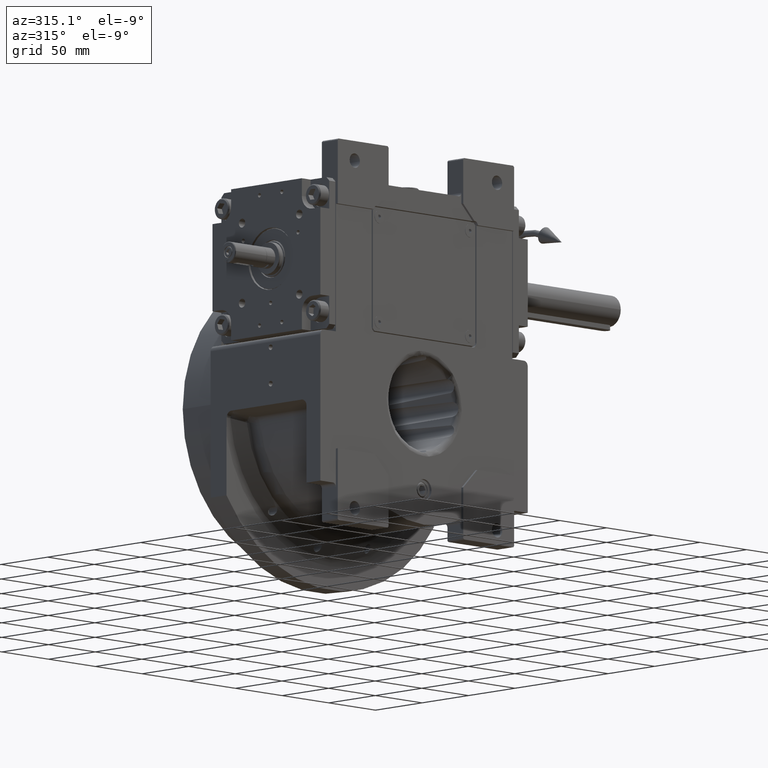
[diagram: clean part render]
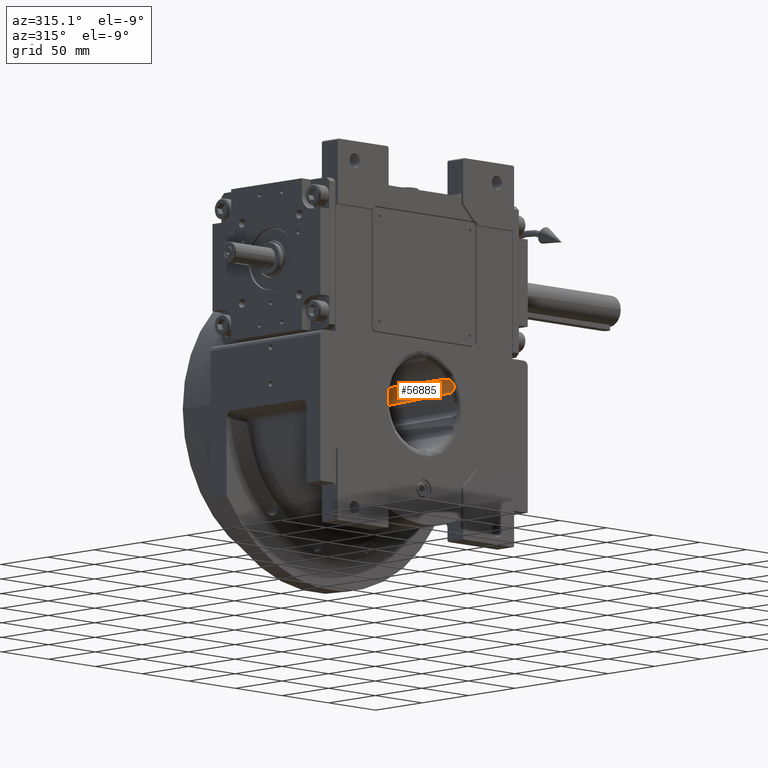
[diagram: same view with one face highlighted and labeled with its STEP entity id]
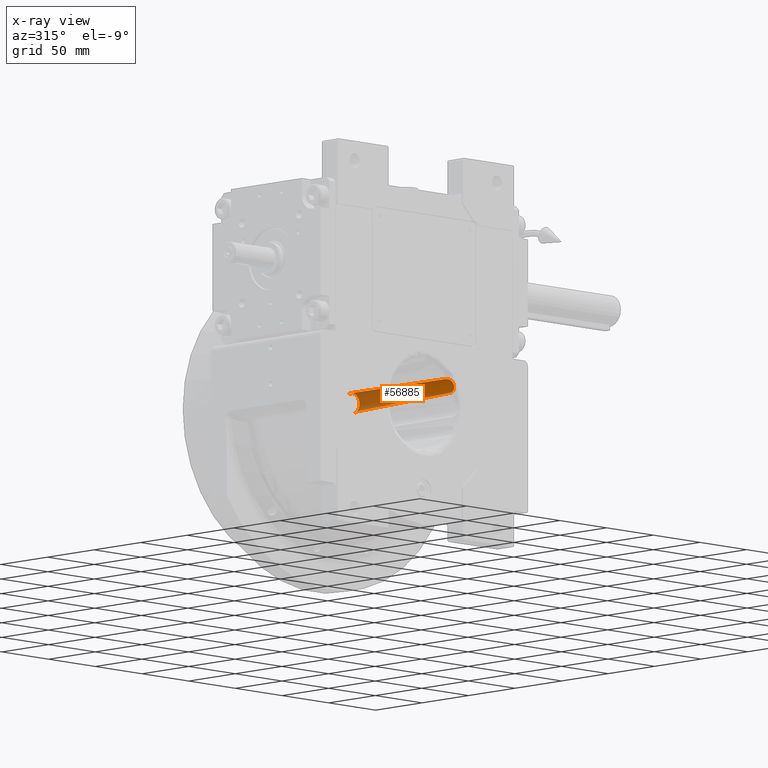
[diagram: x-ray of the same camera — body ghosted, the highlighted face saturated]
A machine part, auxiliary view. The second image highlights one B-rep face of the part: STEP entity #56885.
The next image is the same camera in x-ray: the body ghosted, the highlighted face saturated — about 36% of this face is hidden behind the body in this view.
In plain terms, the highlighted cylindrical surface (edge-blend (fillet) strip) has radius 7.5 mm, axis along (0, -1, 0).
Its self-contained STEP definition (entity closure, byte-faithful):
#136 = CARTESIAN_POINT ( 'NONE',  ( 20.96959790725053097, 49.40190329903994382, 20.57965935233431409 ) ) ;
#361 = CARTESIAN_POINT ( 'NONE',  ( 32.03796361895732758, -8.134360098611464807, 10.57554585156198712 ) ) ;
#522 = CARTESIAN_POINT ( 'NONE',  ( 30.96581530415839012, -52.41119386538401415, 20.60487158151145692 ) ) ;
#705 = CARTESIAN_POINT ( 'NONE',  ( 32.29623410238654202, -17.52649173517004400, 10.95311933300942009 ) ) ;
#739 = CARTESIAN_POINT ( 'NONE',  ( 30.16291113231696386, 47.58149373893668610, 8.774254786784718263 ) ) ;
#855 = CARTESIAN_POINT ( 'NONE',  ( 29.22287938311395905, -51.66287537547461284, 21.76369081053028509 ) ) ;
#907 = CARTESIAN_POINT ( 'NONE',  ( 25.76586295527069126, -20.15906628397324951, 22.49703246914016219 ) ) ;
#1083 = CARTESIAN_POINT ( 'NONE',  ( 30.33517453208069981, 46.61641710001740080, 8.893520450439648783 ) ) ;
#1395 = CARTESIAN_POINT ( 'NONE',  ( 32.39550648120955145, -21.28232574482869310, 11.11365858035048149 ) ) ;
#1547 = CARTESIAN_POINT ( 'NONE',  ( 31.16225507603417455, -52.46080342489350556, 20.42240730847544228 ) ) ;
#1606 = CARTESIAN_POINT ( 'NONE',  ( 25.51128382788143156, -15.03979161265096387, 22.48583985244292194 ) ) ;
#1741 = CARTESIAN_POINT ( 'NONE',  ( 31.86057709188073161, -1.940545456955807158, 10.34403262157984038 ) ) ;
#1887 = CARTESIAN_POINT ( 'NONE',  ( 33.03978607334229878, -48.69402850002909844, 12.46619244321109932 ) ) ;
#2102 = CARTESIAN_POINT ( 'NONE',  ( 29.53894699782599176, 48.64712159633841537, 8.397726163302593250 ) ) ;
#2445 = CARTESIAN_POINT ( 'NONE',  ( 22.62049302724799560, 47.73254868702384357, 21.70473031913191875 ) ) ;
#2914 = CARTESIAN_POINT ( 'NONE',  ( 33.26268473070403786, -50.63430292243734243, 13.20501426065749939 ) ) ;
#3145 = CARTESIAN_POINT ( 'NONE',  ( 28.72702851240235944, 49.24456898018308237, 8.020758590539326605 ) ) ;
#3754 = CARTESIAN_POINT ( 'NONE',  ( 22.86960190519749858, 46.61641710001750027, 21.82427154779680123 ) ) ;
#4120 = CIRCLE ( 'NONE', #27393, 7.500000000000000000 ) ;
#4333 = CARTESIAN_POINT ( 'NONE',  ( 21.73862529511391983, 48.94637212507441859, 21.18485742505196967 ) ) ;
#5341 = CARTESIAN_POINT ( 'NONE',  ( 22.48291878073632333, 48.01981801877338540, 21.63600226016366790 ) ) ;
#5436 = CARTESIAN_POINT ( 'NONE',  ( 25.75368476729403255, -19.91655888687192189, 22.49665975857909572 ) ) ;
#5728 = CARTESIAN_POINT ( 'NONE',  ( 29.54827271083390272, -51.85200247294012854, 21.59695908406233755 ) ) ;
#5923 = CARTESIAN_POINT ( 'NONE',  ( 32.39859966367014010, -21.40025213418822148, 11.11875468489775898 ) ) ;
#5955 = CARTESIAN_POINT ( 'NONE',  ( 30.13617772192050381, 47.65630223139044119, 8.756680521266581252 ) ) ;
#6078 = CARTESIAN_POINT ( 'NONE',  ( 28.00040770489991360, -50.54599577855255887, 22.22270655592999944 ) ) ;
#6133 = CARTESIAN_POINT ( 'NONE',  ( 25.77231298792548131, -20.28739144529727056, 22.49722197610658014 ) ) ;
#6399 = CARTESIAN_POINT ( 'NONE',  ( 27.80478737583685955, -50.25431197531926841, 22.27468996746714325 ) ) ;
#6749 = CARTESIAN_POINT ( 'NONE',  ( 33.47912878839830597, -51.88159820612148820, 14.85432302713038766 ) ) ;
#6936 = CARTESIAN_POINT ( 'NONE',  ( 31.84117950007930986, -1.271834120789564038, 10.31966313272155134 ) ) ;
#6974 = CARTESIAN_POINT ( 'NONE',  ( 30.07588250173464317, 47.81197055076808056, 8.717017268262186036 ) ) ;
#7309 = CARTESIAN_POINT ( 'NONE',  ( 30.12231140148106689, 47.69327088504706325, 8.747562678455858887 ) ) ;
#7431 = CARTESIAN_POINT ( 'NONE',  ( 33.17893052198441950, -52.51570751897649814, 17.10961350187769625 ) ) ;
#8009 = CARTESIAN_POINT ( 'NONE',  ( 27.56720049080099599, 49.50000000000000000, 7.669705785227190376 ) ) ;
#8364 = CARTESIAN_POINT ( 'NONE',  ( 28.70239684744989717, 49.25608618411820316, 8.011045794457965386 ) ) ;
#9525 = ORIENTED_EDGE ( 'NONE', *, *, #65948, .F. ) ;
#9555 = CARTESIAN_POINT ( 'NONE',  ( 20.42576029495970147, 49.50000000000000000, 20.03904304363890176 ) ) ;
#9797 = ORIENTED_EDGE ( 'NONE', *, *, #25704, .F. ) ;
#9990 = CARTESIAN_POINT ( 'NONE',  ( 24.40343721446653902, 8.805876954284169500, 22.33347346561137314 ) ) ;
#10073 = VERTEX_POINT ( 'NONE', #54198 ) ;
#10236 = CARTESIAN_POINT ( 'NONE',  ( 21.23390577843719740, 49.28524964582888401, 20.80691398660406932 ) ) ;
#10958 = CARTESIAN_POINT ( 'NONE',  ( 30.53253387511137262, -52.28036053241073944, 20.96374288390168061 ) ) ;
#11295 = CARTESIAN_POINT ( 'NONE',  ( 27.41356100316881594, -49.38785958119639474, 22.36292318827254277 ) ) ;
#11519 = CARTESIAN_POINT ( 'NONE',  ( 29.55053364178218445, 48.63450414261048138, 8.403970098984228088 ) ) ;
#12316 = CARTESIAN_POINT ( 'NONE',  ( 33.47944135099591989, -51.88957451512859365, 14.87171670398657142 ) ) ;
#12880 = CARTESIAN_POINT ( 'NONE',  ( 28.67426482907362484, 49.26872065061629513, 8.000147681411371892 ) ) ;
#12986 = DIRECTION ( 'NONE',  ( 0.000000000000000000, -1.000000000000000000, 0.000000000000000000 ) ) ;
#13002 = CARTESIAN_POINT ( 'NONE',  ( 32.65401643928240105, -52.63597446807148827, 18.44162169261895201 ) ) ;
#13353 = CARTESIAN_POINT ( 'NONE',  ( 33.38236379788771302, -51.22090615572345484, 13.77571757718701306 ) ) ;
#13579 = CARTESIAN_POINT ( 'NONE',  ( 28.65165339732282135, 49.27863550771590440, 7.991482784513939563 ) ) ;
#13709 = CARTESIAN_POINT ( 'NONE',  ( 31.68626872391039484, -52.58451776966873581, 19.91578404895601295 ) ) ;
#14535 = CARTESIAN_POINT ( 'NONE',  ( 23.48138045842921073, 30.61457057796923920, 22.08259406596232211 ) ) ;
#15114 = CARTESIAN_POINT ( 'NONE',  ( 21.88282049214390668, 48.81378364506801404, 21.28134744503283216 ) ) ;
#15206 = CARTESIAN_POINT ( 'NONE',  ( 23.97559823921020339, 18.69828852044198086, 22.23098874874507658 ) ) ;
#15549 = CARTESIAN_POINT ( 'NONE',  ( 24.53450783003043156, 5.844536196987444754, 22.36053744842152824 ) ) ;
#15795 = CARTESIAN_POINT ( 'NONE',  ( 22.52052189185682352, 47.94749966393766982, 21.65509094791203282 ) ) ;
#16167 = CARTESIAN_POINT ( 'NONE',  ( 29.56843430201832845, -51.86283327244385788, 21.58600357975168293 ) ) ;
#16260 = VERTEX_POINT ( 'NONE', #18021 ) ;
#16414 = VERTEX_POINT ( 'NONE', #46421 ) ;
#17226 = CARTESIAN_POINT ( 'NONE',  ( 26.85994327016154770, -40.89856343677683270, 22.45906777060405446 ) ) ;
#17358 = CARTESIAN_POINT ( 'NONE',  ( 31.93741123966455930, -4.605542403853362110, 10.44235253984417078 ) ) ;
#17389 = CARTESIAN_POINT ( 'NONE',  ( 29.83468155149160950, 48.27000123444950219, 8.563842857423546562 ) ) ;
#17510 = CARTESIAN_POINT ( 'NONE',  ( 33.14987156767111998, -50.05446773375329172, 12.75453706369464868 ) ) ;
#17862 = CARTESIAN_POINT ( 'NONE',  ( 33.25110710813728332, -52.47237036383187814, 16.84185694314662030 ) ) ;
#18021 = CARTESIAN_POINT ( 'NONE',  ( 27.56720049080099599, 49.50000000000000000, 7.669705785227190376 ) ) ;
#18085 = CARTESIAN_POINT ( 'NONE',  ( 28.31971161564896988, 49.42178032540456911, 7.865256689910745891 ) ) ;
#18209 = CARTESIAN_POINT ( 'NONE',  ( 33.27212871677054551, -50.68228712521347035, 13.24343285920208046 ) ) ;
#18545 = CARTESIAN_POINT ( 'NONE',  ( 33.05327720064022401, -49.40060785289716705, 12.50816626661853803 ) ) ;
#18895 = CARTESIAN_POINT ( 'NONE',  ( 31.17941295975708371, -52.46491026454771145, 20.40595241245124214 ) ) ;
#19374 = ORIENTED_EDGE ( 'NONE', *, *, #52472, .F. ) ;
#20309 = CARTESIAN_POINT ( 'NONE',  ( 21.66876776611162470, 49.00351825525323335, 21.13617156171476452 ) ) ;
#20737 = CARTESIAN_POINT ( 'NONE',  ( 24.69007782249815008, 2.395844061787729906, 22.38844597922488333 ) ) ;
#20978 = CARTESIAN_POINT ( 'NONE',  ( 22.21322984677715340, 48.45759113227229875, 21.48867602817251310 ) ) ;
#21072 = CARTESIAN_POINT ( 'NONE',  ( 24.80791845424774777, -0.1879601705583690274, 22.40775267798083803 ) ) ;
#21323 = CARTESIAN_POINT ( 'NONE',  ( 21.21268404246860584, 49.29607638140253556, 20.78949546494076728 ) ) ;
#21360 = CARTESIAN_POINT ( 'NONE',  ( 28.04099426326420641, -50.60023071671344752, 22.21130066121815361 ) ) ;
#21552 = CARTESIAN_POINT ( 'NONE',  ( 31.83559040005688701, -1.079452833704635184, 10.31267435804367061 ) ) ;
#21747 = CARTESIAN_POINT ( 'NONE',  ( 27.31593238095755183, -48.69402850002909844, 22.38019785351220392 ) ) ;
#21911 = CARTESIAN_POINT ( 'NONE',  ( 30.11220530452790811, 47.71949602152293579, 8.740915369185326966 ) ) ;
#22561 = CARTESIAN_POINT ( 'NONE',  ( 32.38599284778942433, -20.91999557110133523, 11.09802335962388398 ) ) ;
#22599 = CARTESIAN_POINT ( 'NONE',  ( 30.22383547413279814, 47.38290930483119467, 8.814394831846753320 ) ) ;
#22717 = CARTESIAN_POINT ( 'NONE',  ( 33.23537914120632308, -52.48272248537554674, 16.90287544876573733 ) ) ;
#23604 = CARTESIAN_POINT ( 'NONE',  ( 22.59700688829193638, 47.78668455444369556, 21.69308342236693932 ) ) ;
#23739 = CARTESIAN_POINT ( 'NONE',  ( 32.11981892161313823, -52.63593660542139929, 19.36676722768635273 ) ) ;
#24083 = CARTESIAN_POINT ( 'NONE',  ( 32.80796835780919452, -52.62272554239599032, 18.12519688227194692 ) ) ;
#25505 = CARTESIAN_POINT ( 'NONE',  ( 21.84640121971104421, 48.84845475061711539, 21.25730116208540821 ) ) ;
#25704 = EDGE_CURVE ( 'NONE', #10073, #38182, #64770, .T. ) ;
#26182 = CARTESIAN_POINT ( 'NONE',  ( 22.01209295322685833, 48.68027719230573069, 21.36397316798752755 ) ) ;
#26557 = CARTESIAN_POINT ( 'NONE',  ( 27.96131599983192828, -50.49248541037025007, 22.23355130317616712 ) ) ;
#26610 = CARTESIAN_POINT ( 'NONE',  ( 24.84177032209827374, -0.9257628672363574784, 22.41301157073619521 ) ) ;
#27235 = CARTESIAN_POINT ( 'NONE',  ( 28.25714746586111303, -50.88099064007911920, 22.14962261821255751 ) ) ;
#27289 = CARTESIAN_POINT ( 'NONE',  ( 25.88057552557573615, -22.43255882948095348, 22.49981477764395521 ) ) ;
#27393 = AXIS2_PLACEMENT_3D ( 'NONE', #33786, #12986, #59150 ) ;
#27571 = CARTESIAN_POINT ( 'NONE',  ( 27.87367530641029845, -50.36585204076853017, 22.25717817202963644 ) ) ;
#27767 = CARTESIAN_POINT ( 'NONE',  ( 32.46389111667873806, -23.90877444857962786, 11.22836526847625294 ) ) ;
#27915 = CARTESIAN_POINT ( 'NONE',  ( 33.47122554379328108, -51.71447766371521482, 14.49539197650070044 ) ) ;
#27972 = CARTESIAN_POINT ( 'NONE',  ( 25.80408192865907679, -20.91873774576742662, 22.49810808267381290 ) ) ;
#28145 = CARTESIAN_POINT ( 'NONE',  ( 29.88907541159061765, 48.18106236552307564, 8.596803073799716088 ) ) ;
#28481 = CARTESIAN_POINT ( 'NONE',  ( 29.56773634812563145, 48.61559448114223869, 8.413261893198637154 ) ) ;
#30709 = CARTESIAN_POINT ( 'NONE',  ( 21.23913049468199787, 49.28254889519597981, 20.81118173800898319 ) ) ;
#31729 = CARTESIAN_POINT ( 'NONE',  ( 21.07213864190878994, 49.36111159826901229, 20.67031189931295643 ) ) ;
#31816 = CARTESIAN_POINT ( 'NONE',  ( 25.95781279238953587, -23.94214980094961476, 22.50025392741264341 ) ) ;
#31824 = B_SPLINE_CURVE_WITH_KNOTS ( 'NONE', 3,
 ( #9555, #47671, #46653, #47326, #136, #31729, #58117, #57770, #21323, #62641, #10236, #30709, #51858, #41791, #20309, #4333, #25505, #15114, #67864, #42475, #36596, #26182, #68539, #42128, #20978, #63317, #5341, #15795, #36933, #39235, #23604, #34357, #60749, #38897, #63989, #55521, #2445, #66302, #54491, #53214 ),
 .UNSPECIFIED., .F., .F.,
 ( 4, 2, 2, 1, 1, 1, 2, 2, 2, 2, 2, 1, 1, 2, 2, 2, 2, 2, 1, 1, 1, 2, 2, 4 ),
 ( 0.000000000000000000, 0.1249999999998793743, 0.1874999999998202549, 0.2187499999997914168, 0.2343749999997777056, 0.2421874999997693512, 0.2460937499997651601, 0.2499999999997609690, 0.3749999999996888600, 0.4374999999996525557, 0.4687499999996351807, 0.4843749999996277422, 0.4921874999996218025, 0.4960937499996175837, 0.4999999999996134203, 0.6249999999994957367, 0.6874999999994366728, 0.7187499999994065858, 0.7343749999993918198, 0.7421874999993882671, 0.7460937499993828270, 0.7480468749993856026, 0.7499999999993883781, 1.000000000000000000 ),
 .UNSPECIFIED. ) ;
#32098 = CARTESIAN_POINT ( 'NONE',  ( 30.66688363128278993, -52.32431383069634734, 20.85886274217254055 ) ) ;
#32161 = CARTESIAN_POINT ( 'NONE',  ( 25.03417263556214323, -5.111746326412928809, 22.44241922395675459 ) ) ;
#32296 = CARTESIAN_POINT ( 'NONE',  ( 32.43472916285715968, -22.78085453633245905, 11.17861445761883132 ) ) ;
#32664 = CARTESIAN_POINT ( 'NONE',  ( 29.21396208921163407, 48.95326953867216702, 8.231544963014435723 ) ) ;
#33105 = CARTESIAN_POINT ( 'NONE',  ( 29.85480316764430597, -52.01489513670458820, 21.42902172237641167 ) ) ;
#33297 = CARTESIAN_POINT ( 'NONE',  ( 31.84765374442425667, -1.494847326153470490, 10.32777694991675510 ) ) ;
#33447 = CARTESIAN_POINT ( 'NONE',  ( 33.28176752831429752, -50.73086541177889330, 13.28322245982648475 ) ) ;
#33641 = CARTESIAN_POINT ( 'NONE',  ( 31.88632308995554254, -2.830628598857678035, 10.37665617069070834 ) ) ;
#33786 = CARTESIAN_POINT ( 'NONE',  ( 25.98076211353314946, 49.50000000000000000, 15.00000000000000000 ) ) ;
#33950 = EDGE_CURVE ( 'NONE', #38182, #16414, #61492, .T. ) ;
#34022 = CARTESIAN_POINT ( 'NONE',  ( 27.95135513628014934, 49.50000000000000711, 7.757248831228814367 ) ) ;
#34143 = CARTESIAN_POINT ( 'NONE',  ( 33.21900707627550986, -52.49301888430042595, 16.96499113103567069 ) ) ;
#34164 = CARTESIAN_POINT ( 'NONE',  ( 30.33517453208069981, 46.61641710001740080, 8.893520450439648783 ) ) ;
#34357 = CARTESIAN_POINT ( 'NONE',  ( 22.60519087835992025, 47.76823114364506750, 21.69711821307774358 ) ) ;
#34367 = CARTESIAN_POINT ( 'NONE',  ( 28.81110638939075841, 49.20326765765936727, 8.054598395683555623 ) ) ;
#34447 = B_SPLINE_CURVE_WITH_KNOTS ( 'NONE', 3,
 ( #38189, #44047, #54121, #27767, #32296, #48920, #5923, #1395, #22561, #48237, #705, #64912, #361, #17358, #33641, #1741, #33297, #6936, #49265, #43026, #21552, #66628, #60719, #61069 ),
 .UNSPECIFIED., .F., .F.,
 ( 4, 2, 1, 2, 2, 1, 1, 1, 1, 1, 1, 1, 1, 1, 2, 2, 4 ),
 ( 0.000000000000000000, 0.2499999999999959477, 0.2812499999999955036, 0.2851562499999955036, 0.2890624999999955591, 0.2968749999999955591, 0.3124999999999956701, 0.3749999999999961697, 0.4374999999999967248, 0.4687499999999970024, 0.4843749999999971689, 0.4921874999999972244, 0.4960937499999972800, 0.4980468749999973355, 0.4990234374999972800, 0.4999999999999973355, 1.000000000000000000 ),
 .UNSPECIFIED. ) ;
#34499 = CARTESIAN_POINT ( 'NONE',  ( 33.46828871974771147, -52.12832100848228833, 15.46501159772939182 ) ) ;
#34850 = CARTESIAN_POINT ( 'NONE',  ( 33.30415381935086572, -50.84186645004113103, 13.37899650279861063 ) ) ;
#35202 = ORIENTED_EDGE ( 'NONE', *, *, #33950, .F. ) ;
#36153 = CARTESIAN_POINT ( 'NONE',  ( 20.42576029495970147, 49.50000000000000000, 20.03904304363890176 ) ) ;
#36596 = CARTESIAN_POINT ( 'NONE',  ( 21.99814194977383153, 48.69544220427837189, 21.35525192964414032 ) ) ;
#36933 = CARTESIAN_POINT ( 'NONE',  ( 22.56605424956126527, 47.85418001069918148, 21.67782198094355905 ) ) ;
#36970 = CARTESIAN_POINT ( 'NONE',  ( 27.67560485189833841, -50.02738671250735791, 22.30641392893160102 ) ) ;
#37314 = CARTESIAN_POINT ( 'NONE',  ( 30.12751894270495612, -52.13326286526509534, 21.25871651592741429 ) ) ;
#37534 = CARTESIAN_POINT ( 'NONE',  ( 29.37264141788027416, 48.82491795594037143, 8.308505947322116114 ) ) ;
#37879 = CARTESIAN_POINT ( 'NONE',  ( 29.69793903919389422, 48.46013413739616738, 8.485097222858168919 ) ) ;
#38182 = VERTEX_POINT ( 'NONE', #58171 ) ;
#38189 = CARTESIAN_POINT ( 'NONE',  ( 33.03978607334229878, -48.69402850002909844, 12.46619244321109932 ) ) ;
#38221 = CARTESIAN_POINT ( 'NONE',  ( 30.18405582097626549, 47.51591317081136623, 8.788164816426439430 ) ) ;
#38554 = CARTESIAN_POINT ( 'NONE',  ( 29.63794797705874018, 48.53423918547179738, 8.451695147083180260 ) ) ;
#38725 = CARTESIAN_POINT ( 'NONE',  ( 24.84450238249142018, -0.9852262051495667139, 22.41343067773047437 ) ) ;
#38897 = CARTESIAN_POINT ( 'NONE',  ( 22.61773646450009423, 47.73906293712882132, 21.70335138977637968 ) ) ;
#38904 = CARTESIAN_POINT ( 'NONE',  ( 30.32918362375524879, 46.81681292207815659, 8.886292643085536014 ) ) ;
#39235 = CARTESIAN_POINT ( 'NONE',  ( 22.57941404956845588, 47.82558514912390990, 21.68440913665240188 ) ) ;
#40045 = CARTESIAN_POINT ( 'NONE',  ( 33.40369212787839359, -52.32954046041449914, 16.12668512685684163 ) ) ;
#40873 = CARTESIAN_POINT ( 'NONE',  ( 23.16783615534134455, 38.59658209810228868, 21.96288101782772273 ) ) ;
#41791 = CARTESIAN_POINT ( 'NONE',  ( 21.46818309823988002, 49.15406426983648203, 20.99206877705196206 ) ) ;
#42128 = CARTESIAN_POINT ( 'NONE',  ( 22.02501114373944091, 48.66612754284280129, 21.37202129183334520 ) ) ;
#42226 = CARTESIAN_POINT ( 'NONE',  ( 24.82765555847728223, -0.6183679701949709173, 22.41083419927674214 ) ) ;
#42475 = CARTESIAN_POINT ( 'NONE',  ( 21.96565932376080710, 48.73008598352269161, 21.33477518291703490 ) ) ;
#42509 = CARTESIAN_POINT ( 'NONE',  ( 29.45641226393562562, -51.80158496028996495, 21.64607794540978247 ) ) ;
#42897 = CARTESIAN_POINT ( 'NONE',  ( 26.42420339564474574, -32.98277518078120352, 22.49775664301285616 ) ) ;
#43026 = CARTESIAN_POINT ( 'NONE',  ( 31.83654995525264653, -1.112472536497340014, 10.31387322169235610 ) ) ;
#43114 = AXIS2_PLACEMENT_3D ( 'NONE', #58203, #46738, #48101 ) ;
#43182 = CARTESIAN_POINT ( 'NONE',  ( 29.01356977930240788, -51.52633281367238283, 21.86180825632134983 ) ) ;
#43522 = CARTESIAN_POINT ( 'NONE',  ( 29.32934222924041379, -51.72875833154849801, 21.71181293755868325 ) ) ;
#43859 = CARTESIAN_POINT ( 'NONE',  ( 33.24611623837325425, -52.47572947502834495, 16.86143635219125514 ) ) ;
#43914 = CARTESIAN_POINT ( 'NONE',  ( 25.73542481541351634, -19.55262966912181355, 22.49607938579292821 ) ) ;
#44047 = CARTESIAN_POINT ( 'NONE',  ( 32.87907831953796034, -40.84851847077243292, 12.02904815201644162 ) ) ;
#44902 = CARTESIAN_POINT ( 'NONE',  ( 33.35946369008381396, -51.10997601039291283, 13.64666777653119745 ) ) ;
#45115 = CARTESIAN_POINT ( 'NONE',  ( 28.65442129943359362, 49.27743036965027557, 7.992540061236402593 ) ) ;
#45232 = CARTESIAN_POINT ( 'NONE',  ( 33.48064371808056450, -51.93308210363975519, 14.96854866296529174 ) ) ;
#46421 = CARTESIAN_POINT ( 'NONE',  ( 33.03978607334229878, -48.69402850002909844, 12.46619244321109932 ) ) ;
#46653 = CARTESIAN_POINT ( 'NONE',  ( 20.69590213432379144, 49.48063621481983887, 20.32182838122232837 ) ) ;
#46738 = DIRECTION ( 'NONE',  ( 0.000000000000000000, -1.000000000000000000, 0.000000000000000000 ) ) ;
#47326 = CARTESIAN_POINT ( 'NONE',  ( 20.90109506918173565, 49.42491349211694995, 20.51679538617716503 ) ) ;
#47414 = CYLINDRICAL_SURFACE ( 'NONE', #43114, 7.500000000000000000 ) ;
#47671 = CARTESIAN_POINT ( 'NONE',  ( 20.55950572575154212, 49.50000000000000711, 20.18332683143070838 ) ) ;
#47708 = CARTESIAN_POINT ( 'NONE',  ( 28.02680617592924150, -50.58149897954046281, 22.21531316707502413 ) ) ;
#48047 = CARTESIAN_POINT ( 'NONE',  ( 30.86649004479975034, -52.38337881837697552, 20.69124924032645296 ) ) ;
#48101 = DIRECTION ( 'NONE',  ( -1.000000000000000000, 0.000000000000000000, 0.000000000000000000 ) ) ;
#48237 = CARTESIAN_POINT ( 'NONE',  ( 32.36690387828606674, -20.19458486953130816, 11.06681835207251652 ) ) ;
#48386 = CARTESIAN_POINT ( 'NONE',  ( 28.87884791412301411, -51.42892988642141461, 21.91969599109752309 ) ) ;
#48442 = CARTESIAN_POINT ( 'NONE',  ( 25.61991781766457876, -17.24455030350812379, 22.49199927315329361 ) ) ;
#48920 = CARTESIAN_POINT ( 'NONE',  ( 32.40517653549862587, -21.65130370070694354, 11.12962295102970245 ) ) ;
#48951 = CARTESIAN_POINT ( 'NONE',  ( 30.11016612933642023, 47.72472469038969933, 8.739573871099757696 ) ) ;
#49069 = CARTESIAN_POINT ( 'NONE',  ( 33.48000752401575397, -51.90709263300287546, 14.91038528627865922 ) ) ;
#49265 = CARTESIAN_POINT ( 'NONE',  ( 31.83840213199122005, -1.176221859927528923, 10.31618878572458264 ) ) ;
#49413 = CARTESIAN_POINT ( 'NONE',  ( 33.00279054786292932, -52.58169897620617661, 17.64155589281778092 ) ) ;
#49636 = CARTESIAN_POINT ( 'NONE',  ( 29.73445707869489496, 48.41159212155469049, 8.505852690041308506 ) ) ;
#50110 = CARTESIAN_POINT ( 'NONE',  ( 33.47781768906824595, -52.03867331418210540, 15.22448385082852162 ) ) ;
#50459 = CARTESIAN_POINT ( 'NONE',  ( 33.14133168000098806, -52.53291608965154325, 17.23299102998716847 ) ) ;
#51858 = CARTESIAN_POINT ( 'NONE',  ( 21.34664992532621852, 49.22664135260750129, 20.89881449957361426 ) ) ;
#52472 = EDGE_CURVE ( 'NONE', #16260, #53573, #4120, .T. ) ;
#52908 = CARTESIAN_POINT ( 'NONE',  ( 27.31593238095755183, -48.69402850002909844, 22.38019785351220392 ) ) ;
#53214 = CARTESIAN_POINT ( 'NONE',  ( 22.86960190519749858, 46.61641710001750027, 21.82427154779680123 ) ) ;
#53573 = VERTEX_POINT ( 'NONE', #36153 ) ;
#53591 = CARTESIAN_POINT ( 'NONE',  ( 27.60094196397365707, -49.87096611991015038, 22.32316871656679425 ) ) ;
#53820 = CARTESIAN_POINT ( 'NONE',  ( 28.98887270372758351, 49.10382877866539530, 8.129881354709789676 ) ) ;
#54121 = CARTESIAN_POINT ( 'NONE',  ( 32.69434799620987775, -32.92053606920116238, 11.63179893253083641 ) ) ;
#54157 = CARTESIAN_POINT ( 'NONE',  ( 30.24700807334340169, 47.29177895600129489, 8.829760938454686681 ) ) ;
#54198 = CARTESIAN_POINT ( 'NONE',  ( 22.86960190519749858, 46.61641710001750027, 21.82427154779680123 ) ) ;
#54491 = CARTESIAN_POINT ( 'NONE',  ( 22.85106580526130315, 47.01750963512242265, 21.82113339188841294 ) ) ;
#54500 = CARTESIAN_POINT ( 'NONE',  ( 30.10862198760073127, 47.72866378003589460, 8.738557957324815106 ) ) ;
#54846 = CARTESIAN_POINT ( 'NONE',  ( 30.30530621501497279, 47.01197253033077317, 8.869097646235482912 ) ) ;
#54957 = CARTESIAN_POINT ( 'NONE',  ( 33.45664107126805220, -52.18244567292911285, 15.62842879032859322 ) ) ;
#55521 = CARTESIAN_POINT ( 'NONE',  ( 22.62050575785917061, 47.73251546783021837, 21.70473705329069602 ) ) ;
#55652 = CARTESIAN_POINT ( 'NONE',  ( 33.32294937080427388, -50.93299817746482461, 13.46605913051415371 ) ) ;
#55881 = CARTESIAN_POINT ( 'NONE',  ( 28.91589833849270974, 49.14705906858890927, 8.098259322704064900 ) ) ;
#56078 = EDGE_CURVE ( 'NONE', #53573, #10073, #31824, .T. ) ;
#56885 = ADVANCED_FACE ( 'NONE', ( #68285 ), #47414, .F. ) ;
#57515 = CARTESIAN_POINT ( 'NONE',  ( 24.14431659655413398, 14.73565037171160341, 22.27525475506502417 ) ) ;
#57770 = CARTESIAN_POINT ( 'NONE',  ( 21.18294206378573463, 49.31086797338758743, 20.76486123638152748 ) ) ;
#58117 = CARTESIAN_POINT ( 'NONE',  ( 21.12335617263145693, 49.33914740763754736, 20.71472797152445011 ) ) ;
#58171 = CARTESIAN_POINT ( 'NONE',  ( 27.31593238095755183, -48.69402850002909844, 22.38019785351220392 ) ) ;
#58203 = CARTESIAN_POINT ( 'NONE',  ( 25.98076211353314946, -53.50000000000000000, 15.00000000000000000 ) ) ;
#58305 = ORIENTED_EDGE ( 'NONE', *, *, #56078, .F. ) ;
#58707 = CARTESIAN_POINT ( 'NONE',  ( 30.11525540405533263, 47.71164508860924514, 8.742921801094269085 ) ) ;
#58825 = CARTESIAN_POINT ( 'NONE',  ( 27.33747769530265259, -49.04714885856918727, 22.37553910599893925 ) ) ;
#59150 = DIRECTION ( 'NONE',  ( 0.2115251169690436361, 0.000000000000000000, -0.9773725619697088973 ) ) ;
#59720 = CARTESIAN_POINT ( 'NONE',  ( 29.60664909382205323, 48.57161259942162701, 8.434427022840287336 ) ) ;
#59842 = CARTESIAN_POINT ( 'NONE',  ( 31.08066968195829105, -52.44078944466375702, 20.49952221945013164 ) ) ;
#59869 = B_SPLINE_CURVE_WITH_KNOTS ( 'NONE', 3,
 ( #1083, #38904, #54846, #54157, #22599, #38221, #739, #5955, #7309, #58707, #21911, #48951, #54500, #6974, #64944, #28145, #17389, #49636, #37879, #38554, #59720, #28481, #11519, #2102, #63910, #37534, #32664, #53820, #55881, #34367, #65972, #3145, #8364, #12880, #61104, #45115, #13579, #18085, #34022, #8009 ),
 .UNSPECIFIED., .F., .F.,
 ( 4, 2, 2, 1, 1, 1, 1, 2, 2, 2, 2, 2, 1, 1, 2, 2, 2, 2, 2, 1, 1, 2, 2, 4 ),
 ( 0.000000000000000000, 0.1249999999997317424, 0.1874999999995998756, 0.2187499999995341782, 0.2343749999994991784, 0.2421874999994795274, 0.2460937499994701183, 0.2480468749994650113, 0.2499999999994599043, 0.3749999999995663469, 0.4374999999996189159, 0.4687499999996451727, 0.4843749999996589950, 0.4921874999996648237, 0.4960937499996677658, 0.4999999999996707079, 0.6249999999998027134, 0.6874999999998695488, 0.7187499999999040767, 0.7343749999999202860, 0.7421874999999269473, 0.7460937499999276135, 0.7499999999999282796, 1.000000000000000000 ),
 .UNSPECIFIED. ) ;
#60199 = CARTESIAN_POINT ( 'NONE',  ( 31.12965404850573137, -52.45287643018433954, 20.45338532238732654 ) ) ;
#60719 = CARTESIAN_POINT ( 'NONE',  ( 30.87341101027611856, 30.57923330682424989, 9.271385312131158685 ) ) ;
#60749 = CARTESIAN_POINT ( 'NONE',  ( 22.61372033881409038, 47.74848563817779024, 21.70134908932799434 ) ) ;
#60881 = CARTESIAN_POINT ( 'NONE',  ( 33.06173187591774365, -52.56447150951542824, 17.47884876629501960 ) ) ;
#61069 = CARTESIAN_POINT ( 'NONE',  ( 30.33517453208069981, 46.61641710001740080, 8.893520450439648783 ) ) ;
#61104 = CARTESIAN_POINT ( 'NONE',  ( 28.66234083889558804, 49.27396842271746635, 7.995570595937302016 ) ) ;
#61492 = B_SPLINE_CURVE_WITH_KNOTS ( 'NONE', 3,
 ( #52908, #58825, #11295, #53591, #36970, #6399, #27571, #26557, #6078, #47708, #21360, #27235, #64717, #48386, #43182, #855, #43522, #42509, #63695, #5728, #16167, #33105, #37314, #10958, #32098, #48047, #522, #59842, #60199, #1547, #18895, #13709, #23739, #13002, #24083, #49413, #60881, #50459, #7431, #34143, #22717, #43859, #17862, #66428, #40045, #54957, #34499, #50110, #66087, #45232, #49069, #12316, #6749, #27915, #65751, #13353, #44902, #55652, #34850, #33447, #18209, #65064, #2914, #17510, #18545, #1887 ),
 .UNSPECIFIED., .F., .F.,
 ( 4, 2, 2, 1, 1, 2, 2, 2, 2, 1, 1, 2, 2, 2, 2, 1, 1, 2, 2, 2, 2, 2, 1, 1, 2, 2, 2, 2, 1, 1, 2, 2, 2, 2, 1, 1, 2, 2, 4 ),
 ( 0.000000000000000000, 0.06250000000002141343, 0.09375000000003197442, 0.1093750000000372341, 0.1171875000000395656, 0.1210937500000404260, 0.1250000000000412725, 0.1875000000000452416, 0.2187500000000476286, 0.2343750000000488221, 0.2421875000000495992, 0.2460937500000502098, 0.2500000000000507927, 0.3125000000000554001, 0.3437500000000578426, 0.3593750000000586753, 0.3671875000000590084, 0.3710937500000590639, 0.3750000000000591194, 0.5000000000000646150, 0.5625000000000670575, 0.5937500000000688338, 0.6093750000000693889, 0.6171875000000699441, 0.6210937500000700551, 0.6250000000000701661, 0.6875000000000617284, 0.7187500000000577316, 0.7343750000000558442, 0.7421875000000547340, 0.7460937500000538458, 0.7500000000000529576, 0.8125000000000399680, 0.8437500000000336398, 0.8593750000000303091, 0.8671875000000291989, 0.8710937500000286438, 0.8750000000000280886, 1.000000000000000000 ),
 .UNSPECIFIED. ) ;
#61554 = EDGE_LOOP ( 'NONE', ( #9797, #58305, #19374, #9525, #63942, #35202 ) ) ;
#62641 = CARTESIAN_POINT ( 'NONE',  ( 21.22541873016253078, 49.28959871027217332, 20.79995916511030885 ) ) ;
#63064 = CARTESIAN_POINT ( 'NONE',  ( 24.76852740269323405, 0.6730493479327814832, 22.40147263989444326 ) ) ;
#63134 = EDGE_CURVE ( 'NONE', #16414, #64132, #34447, .T. ) ;
#63317 = CARTESIAN_POINT ( 'NONE',  ( 22.34291917631148294, 48.26168496178345890, 21.56144749557910956 ) ) ;
#63695 = CARTESIAN_POINT ( 'NONE',  ( 29.51145299730931981, -51.83194755450116276, 21.61676110278731500 ) ) ;
#63910 = CARTESIAN_POINT ( 'NONE',  ( 29.53201184253895306, 48.65459300308143042, 8.393998663505724878 ) ) ;
#63942 = ORIENTED_EDGE ( 'NONE', *, *, #63134, .F. ) ;
#63989 = CARTESIAN_POINT ( 'NONE',  ( 22.61940501858860486, 47.73512151103695089, 21.70418589699224299 ) ) ;
#64081 = CARTESIAN_POINT ( 'NONE',  ( 24.83612322843072562, -0.8028076786943084686, 22.41214229726998752 ) ) ;
#64132 = VERTEX_POINT ( 'NONE', #34164 ) ;
#64717 = CARTESIAN_POINT ( 'NONE',  ( 28.49200700702769140, -51.11646377484044024, 22.07354971676841870 ) ) ;
#64770 = B_SPLINE_CURVE_WITH_KNOTS ( 'NONE', 3,
 ( #3754, #40873, #14535, #15206, #57515, #9990, #15549, #20737, #63064, #21072, #42226, #64081, #26610, #38725, #32161, #64773, #1606, #48442, #43914, #5436, #907, #6133, #27972, #27289, #31816, #42897, #17226, #21747 ),
 .UNSPECIFIED., .F., .F.,
 ( 4, 2, 2, 1, 1, 1, 1, 1, 2, 2, 2, 1, 1, 2, 2, 1, 2, 4 ),
 ( 0.000000000000000000, 0.2500000000000010547, 0.3750000000000015543, 0.4375000000000018319, 0.4687500000000019984, 0.4843750000000020539, 0.4921875000000020539, 0.4960937500000021094, 0.4980468750000021094, 0.5000000000000021094, 0.6250000000000026645, 0.6875000000000028866, 0.6953125000000027756, 0.6992187500000027756, 0.7031250000000026645, 0.7187500000000024425, 0.7500000000000021094, 1.000000000000000000 ),
 .UNSPECIFIED. ) ;
#64773 = CARTESIAN_POINT ( 'NONE',  ( 25.22349478564256486, -9.117395846592723174, 22.46406618674372169 ) ) ;
#64912 = CARTESIAN_POINT ( 'NONE',  ( 32.17692097400787787, -13.11549990474085803, 10.77098591918380777 ) ) ;
#64944 = CARTESIAN_POINT ( 'NONE',  ( 30.02363273105523689, 47.93921301504381205, 8.680762058862883990 ) ) ;
#65064 = CARTESIAN_POINT ( 'NONE',  ( 33.26569889372124322, -50.64967766016699358, 13.21718720320297180 ) ) ;
#65751 = CARTESIAN_POINT ( 'NONE',  ( 33.44255657133427206, -51.53335785086489551, 14.18767337498501213 ) ) ;
#65948 = EDGE_CURVE ( 'NONE', #64132, #16260, #59869, .T. ) ;
#65972 = CARTESIAN_POINT ( 'NONE',  ( 28.77694891869569105, 49.22056427454123195, 8.040672025219656405 ) ) ;
#66087 = CARTESIAN_POINT ( 'NONE',  ( 33.48059974733487110, -51.99173347927582256, 15.10536973893257873 ) ) ;
#66302 = CARTESIAN_POINT ( 'NONE',  ( 22.76188458084997279, 47.39626141276102089, 21.77569981311856040 ) ) ;
#66428 = CARTESIAN_POINT ( 'NONE',  ( 33.34427225989004739, -52.40729835806452996, 16.46952285758173318 ) ) ;
#66628 = CARTESIAN_POINT ( 'NONE',  ( 31.37721542762626115, 14.69085711055731203, 9.740320526097153930 ) ) ;
#67864 = CARTESIAN_POINT ( 'NONE',  ( 21.93796135097910849, 48.75852675355136512, 21.31703059179083581 ) ) ;
#68285 = FACE_OUTER_BOUND ( 'NONE', #61554, .T. ) ;
#68539 = CARTESIAN_POINT ( 'NONE',  ( 22.02139956514876218, 48.67009612978860389, 21.36977451276647955 ) ) ;